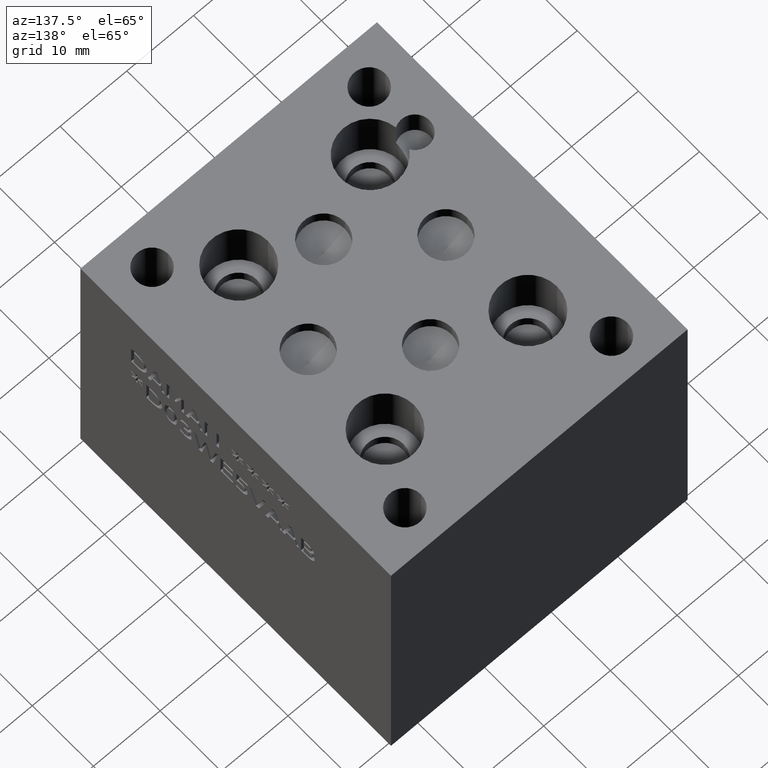
[diagram: clean part render]
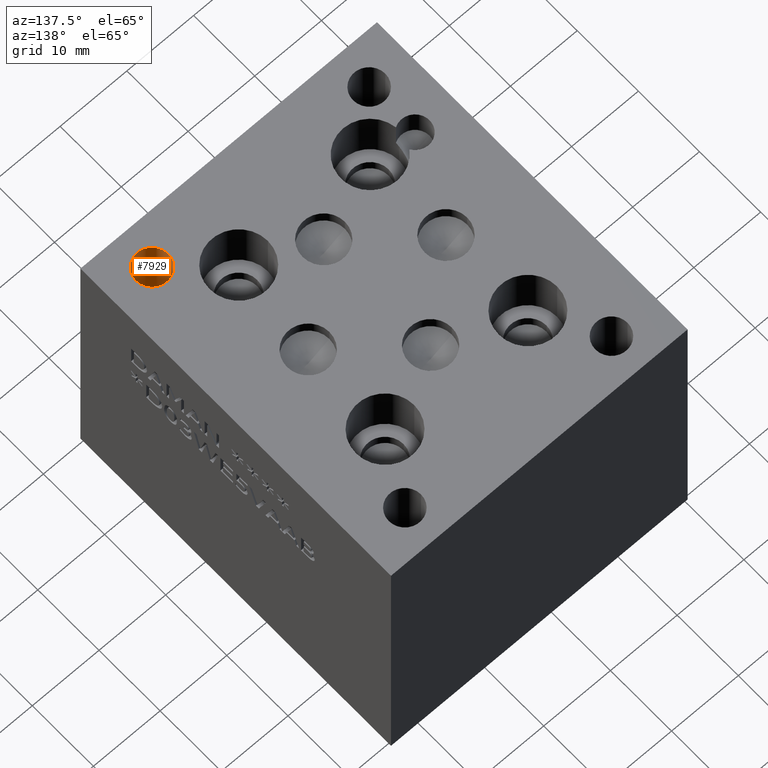
[diagram: same view with one face highlighted and labeled with its STEP entity id]
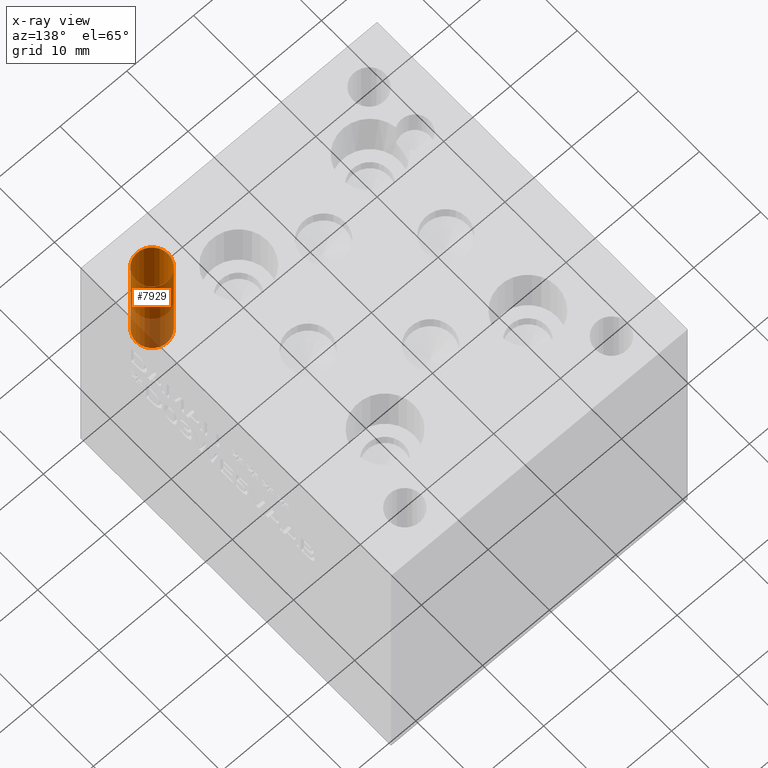
[diagram: x-ray of the same camera — body ghosted, the highlighted face saturated]
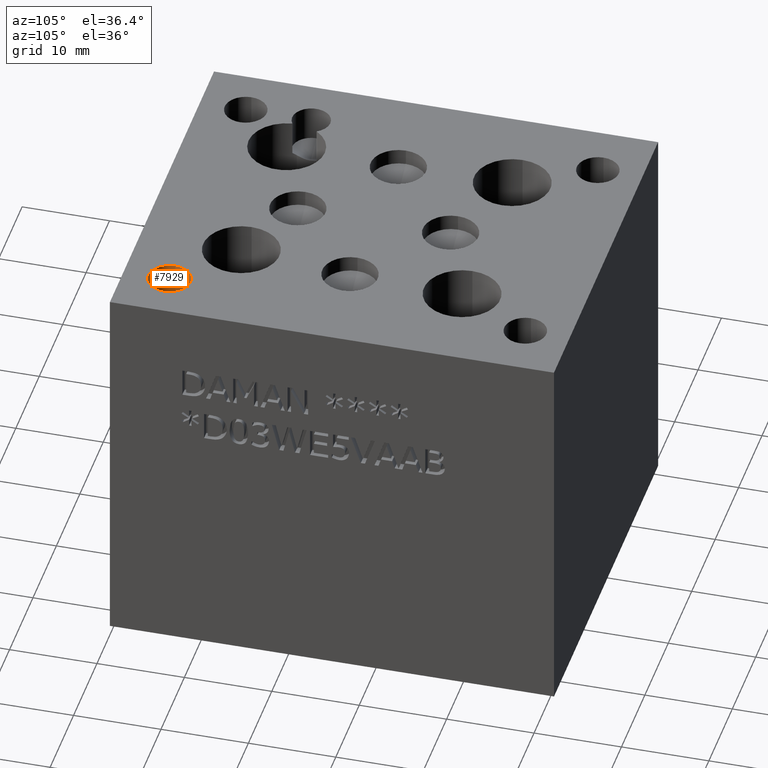
[diagram: same view with one face highlighted and labeled with its STEP entity id]
A machine part, auxiliary view. The second image highlights one B-rep face of the part: STEP entity #7929.
The next image is the same camera in x-ray: the body ghosted, the highlighted face saturated — about 32% of this face is hidden behind the body in this view.
A second angle (auxiliary view) of the same face is appended — the face is thin or edge-on in the first view.
In plain terms, the highlighted cylindrical surface (bore or boss wall) has radius 2.413 mm, axis along (0, 0, 1).
Its self-contained STEP definition (entity closure, byte-faithful):
#112=CIRCLE('',#8333,2.413);
#113=CIRCLE('',#8334,2.413);
#135=CIRCLE('',#8368,2.413);
#136=CIRCLE('',#8369,2.413);
#178=CYLINDRICAL_SURFACE('',#8371,2.413);
#850=FACE_OUTER_BOUND('',#1298,.T.);
#1298=EDGE_LOOP('',(#6859,#6860,#6861,#6862,#6863,#6864));
#2128=LINE('',#13249,#2944);
#2944=VECTOR('',#10027,2.413);
#3657=VERTEX_POINT('',#13170);
#3658=VERTEX_POINT('',#13171);
#3684=VERTEX_POINT('',#13242);
#3685=VERTEX_POINT('',#13243);
#4724=EDGE_CURVE('',#3657,#3658,#112,.T.);
#4725=EDGE_CURVE('',#3658,#3657,#113,.T.);
#4757=EDGE_CURVE('',#3684,#3685,#135,.T.);
#4758=EDGE_CURVE('',#3685,#3684,#136,.T.);
#4760=EDGE_CURVE('',#3658,#3685,#2128,.T.);
#6859=ORIENTED_EDGE('',*,*,#4724,.F.);
#6860=ORIENTED_EDGE('',*,*,#4725,.F.);
#6861=ORIENTED_EDGE('',*,*,#4760,.T.);
#6862=ORIENTED_EDGE('',*,*,#4757,.F.);
#6863=ORIENTED_EDGE('',*,*,#4758,.F.);
#6864=ORIENTED_EDGE('',*,*,#4760,.F.);
#7929=ADVANCED_FACE('',(#850),#178,.F.);
#8333=AXIS2_PLACEMENT_3D('',#13172,#9939,#9940);
#8334=AXIS2_PLACEMENT_3D('',#13173,#9941,#9942);
#8368=AXIS2_PLACEMENT_3D('',#13244,#10019,#10020);
#8369=AXIS2_PLACEMENT_3D('',#13245,#10021,#10022);
#8371=AXIS2_PLACEMENT_3D('',#13248,#10025,#10026);
#9939=DIRECTION('center_axis',(0.,0.,-1.));
#9940=DIRECTION('ref_axis',(1.,0.,0.));
#9941=DIRECTION('center_axis',(0.,0.,-1.));
#9942=DIRECTION('ref_axis',(1.,0.,0.));
#10019=DIRECTION('center_axis',(0.,0.,1.));
#10020=DIRECTION('ref_axis',(1.,0.,0.));
#10021=DIRECTION('center_axis',(0.,0.,1.));
#10022=DIRECTION('ref_axis',(1.,0.,0.));
#10025=DIRECTION('center_axis',(0.,0.,1.));
#10026=DIRECTION('ref_axis',(1.,0.,0.));
#10027=DIRECTION('',(0.,0.,-1.));
#13170=CARTESIAN_POINT('',(40.9194,5.2324,44.45));
#13171=CARTESIAN_POINT('',(36.0934,5.2324,44.45));
#13172=CARTESIAN_POINT('Origin',(38.5064,5.2324,44.45));
#13173=CARTESIAN_POINT('Origin',(38.5064,5.2324,44.45));
#13242=CARTESIAN_POINT('',(40.9194,5.2324,28.448));
#13243=CARTESIAN_POINT('',(36.0934,5.2324,28.448));
#13244=CARTESIAN_POINT('Origin',(38.5064,5.2324,28.448));
#13245=CARTESIAN_POINT('Origin',(38.5064,5.2324,28.448));
#13248=CARTESIAN_POINT('Origin',(38.5064,5.2324,36.449));
#13249=CARTESIAN_POINT('',(36.0934,5.2324,36.449));